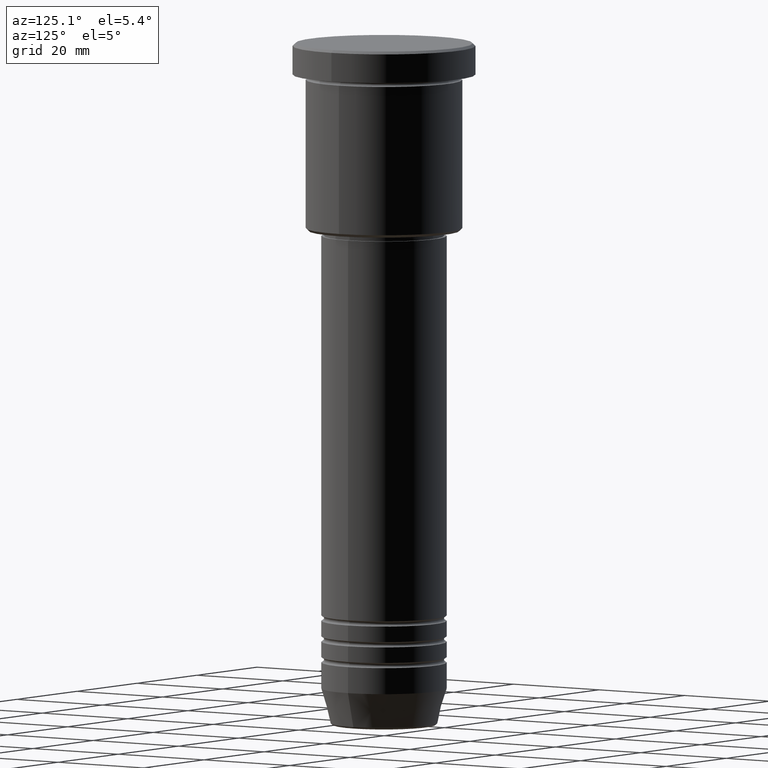
[diagram: clean part render]
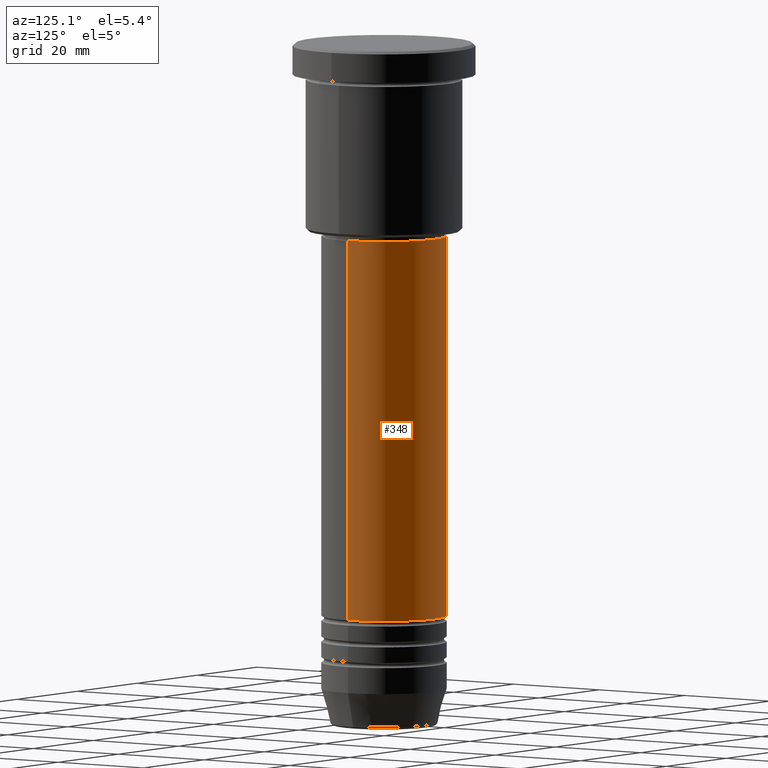
[diagram: same view with one face highlighted and labeled with its STEP entity id]
A machine part, auxiliary view. The second image highlights one B-rep face of the part: STEP entity #348.
In plain terms, the highlighted cylindrical surface (partial cylindrical patch) has radius 12 mm, axis along (-0, -0, 1).
Its self-contained STEP definition (entity closure, byte-faithful):
#54 = DIRECTION ( 'NONE',  ( -0.000000000000000000, -0.000000000000000000, 1.000000000000000000 ) ) ;
#74 = CARTESIAN_POINT ( 'NONE',  ( 0.000000000000000000, 0.000000000000000000, -36.99999999999998579 ) ) ;
#130 = DIRECTION ( 'NONE',  ( -0.000000000000000000, -0.000000000000000000, 1.000000000000000000 ) ) ;
#148 = CARTESIAN_POINT ( 'NONE',  ( 0.000000000000000000, 0.000000000000000000, 0.000000000000000000 ) ) ;
#216 = LINE ( 'NONE', #949, #1041 ) ;
#253 = AXIS2_PLACEMENT_3D ( 'NONE', #148, #54, #853 ) ;
#270 = CIRCLE ( 'NONE', #516, 12.00000000000000000 ) ;
#296 = VERTEX_POINT ( 'NONE', #1123 ) ;
#315 = DIRECTION ( 'NONE',  ( 1.000000000000000000, 0.000000000000000000, 0.000000000000000000 ) ) ;
#340 = DIRECTION ( 'NONE',  ( -0.000000000000000000, -0.000000000000000000, 1.000000000000000000 ) ) ;
#348 = ADVANCED_FACE ( 'NONE', ( #867 ), #965, .T. ) ;
#434 = CARTESIAN_POINT ( 'NONE',  ( 12.00000000000000000, 0.000000000000000000, -36.99999999999998579 ) ) ;
#439 = LINE ( 'NONE', #1002, #937 ) ;
#465 = CARTESIAN_POINT ( 'NONE',  ( -12.00000000000000000, 1.469576158976823947E-15, -36.99999999999998579 ) ) ;
#474 = CARTESIAN_POINT ( 'NONE',  ( -12.00000000000000000, 1.469576158976823947E-15, -109.9999999999998863 ) ) ;
#486 = VERTEX_POINT ( 'NONE', #465 ) ;
#516 = AXIS2_PLACEMENT_3D ( 'NONE', #74, #604, #971 ) ;
#572 = ORIENTED_EDGE ( 'NONE', *, *, #796, .F. ) ;
#604 = DIRECTION ( 'NONE',  ( -0.000000000000000000, -0.000000000000000000, 1.000000000000000000 ) ) ;
#671 = AXIS2_PLACEMENT_3D ( 'NONE', #1159, #340, #315 ) ;
#710 = CIRCLE ( 'NONE', #671, 12.00000000000000000 ) ;
#777 = ORIENTED_EDGE ( 'NONE', *, *, #1164, .T. ) ;
#784 = VERTEX_POINT ( 'NONE', #474 ) ;
#796 = EDGE_CURVE ( 'NONE', #296, #805, #216, .T. ) ;
#805 = VERTEX_POINT ( 'NONE', #434 ) ;
#831 = EDGE_CURVE ( 'NONE', #805, #486, #270, .T. ) ;
#853 = DIRECTION ( 'NONE',  ( 1.000000000000000000, 0.000000000000000000, 0.000000000000000000 ) ) ;
#867 = FACE_OUTER_BOUND ( 'NONE', #1019, .T. ) ;
#890 = DIRECTION ( 'NONE',  ( -0.000000000000000000, -0.000000000000000000, 1.000000000000000000 ) ) ;
#937 = VECTOR ( 'NONE', #890, 1000.000000000000000 ) ;
#949 = CARTESIAN_POINT ( 'NONE',  ( 12.00000000000000000, 0.000000000000000000, 0.000000000000000000 ) ) ;
#965 = CYLINDRICAL_SURFACE ( 'NONE', #253, 12.00000000000000000 ) ;
#971 = DIRECTION ( 'NONE',  ( 1.000000000000000000, 0.000000000000000000, 0.000000000000000000 ) ) ;
#1002 = CARTESIAN_POINT ( 'NONE',  ( -12.00000000000000000, 1.469576158976823947E-15, 0.000000000000000000 ) ) ;
#1019 = EDGE_LOOP ( 'NONE', ( #1056, #777, #1038, #572 ) ) ;
#1038 = ORIENTED_EDGE ( 'NONE', *, *, #831, .F. ) ;
#1041 = VECTOR ( 'NONE', #130, 1000.000000000000000 ) ;
#1042 = EDGE_CURVE ( 'NONE', #296, #784, #710, .T. ) ;
#1056 = ORIENTED_EDGE ( 'NONE', *, *, #1042, .T. ) ;
#1123 = CARTESIAN_POINT ( 'NONE',  ( 12.00000000000000000, 0.000000000000000000, -109.9999999999998863 ) ) ;
#1159 = CARTESIAN_POINT ( 'NONE',  ( 0.000000000000000000, 0.000000000000000000, -109.9999999999998863 ) ) ;
#1164 = EDGE_CURVE ( 'NONE', #784, #486, #439, .T. ) ;